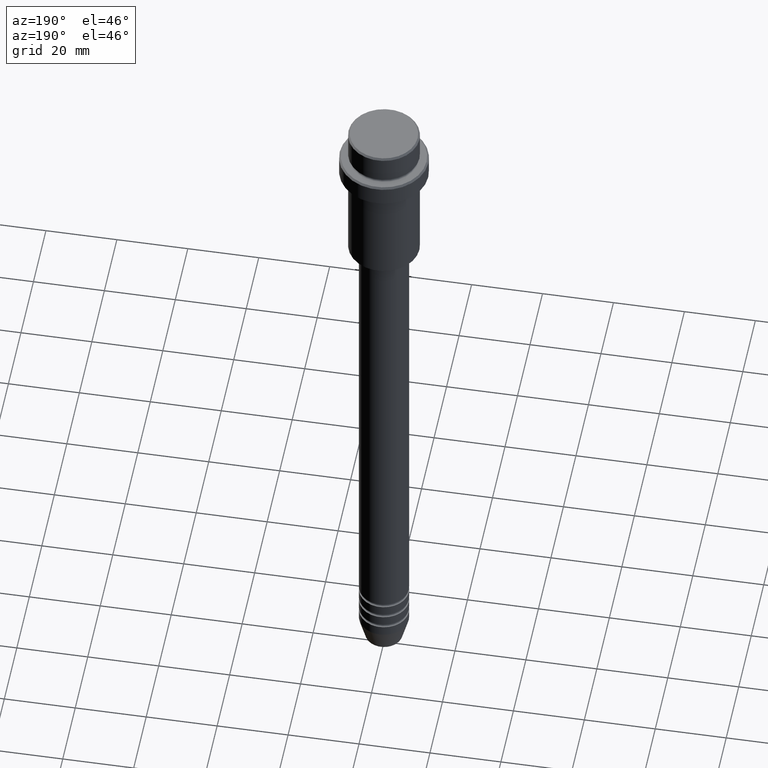
[diagram: clean part render]
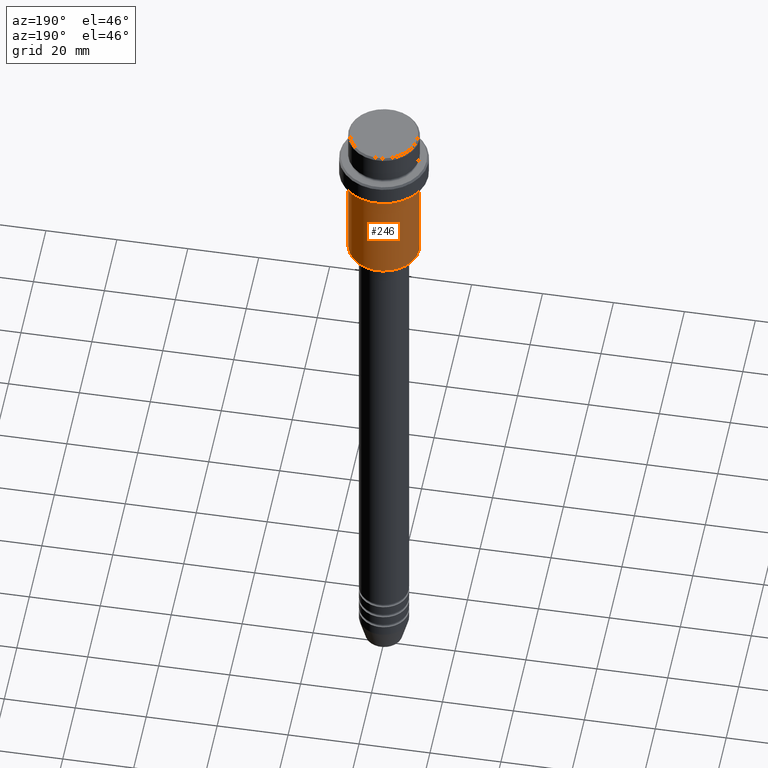
[diagram: same view with one face highlighted and labeled with its STEP entity id]
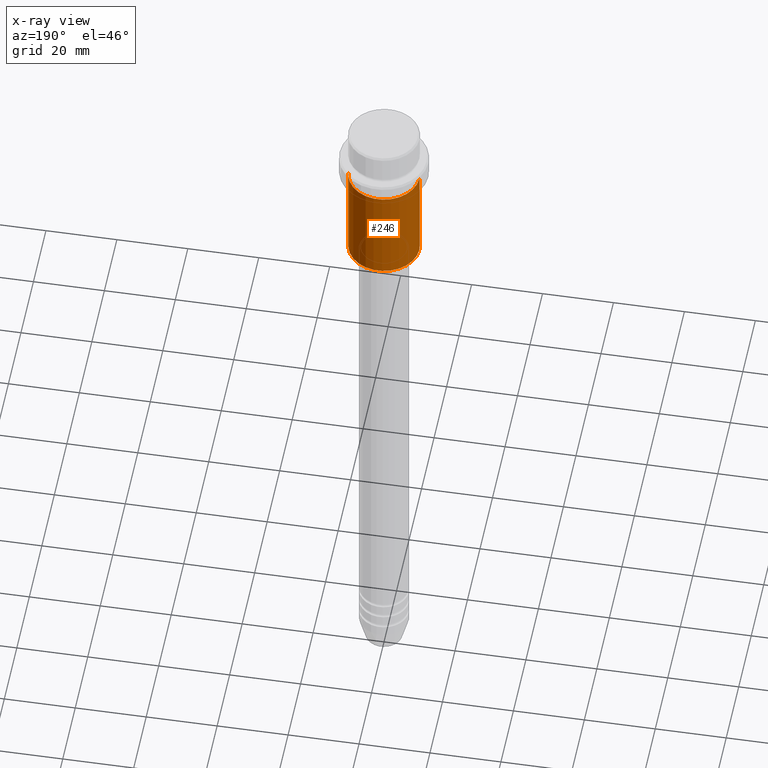
[diagram: x-ray of the same camera — body ghosted, the highlighted face saturated]
A machine part, auxiliary view. The second image highlights one B-rep face of the part: STEP entity #246.
The next image is the same camera in x-ray: the body ghosted, the highlighted face saturated — about 0% of this face is hidden behind the body in this view.
In plain terms, the highlighted cylindrical surface (edge-blend (fillet) strip) has radius 10 mm, axis along (-0, -0, 1).
Its self-contained STEP definition (entity closure, byte-faithful):
#25 = ORIENTED_EDGE ( 'NONE', *, *, #430, .T. ) ;
#48 = CARTESIAN_POINT ( 'NONE',  ( 0.000000000000000000, 0.000000000000000000, 0.000000000000000000 ) ) ;
#64 = EDGE_CURVE ( 'NONE', #1106, #327, #646, .T. ) ;
#93 = CARTESIAN_POINT ( 'NONE',  ( 0.000000000000000000, 0.000000000000000000, -44.50000000000001421 ) ) ;
#163 = DIRECTION ( 'NONE',  ( -0.000000000000000000, -0.000000000000000000, 1.000000000000000000 ) ) ;
#192 = DIRECTION ( 'NONE',  ( -0.000000000000000000, -0.000000000000000000, 1.000000000000000000 ) ) ;
#226 = VECTOR ( 'NONE', #192, 1000.000000000000000 ) ;
#246 = ADVANCED_FACE ( 'NONE', ( #499 ), #378, .T. ) ;
#259 = LINE ( 'NONE', #714, #556 ) ;
#327 = VERTEX_POINT ( 'NONE', #1280 ) ;
#378 = CYLINDRICAL_SURFACE ( 'NONE', #1033, 9.999999999999998224 ) ;
#406 = VERTEX_POINT ( 'NONE', #595 ) ;
#421 = DIRECTION ( 'NONE',  ( -0.000000000000000000, -0.000000000000000000, 1.000000000000000000 ) ) ;
#424 = DIRECTION ( 'NONE',  ( -1.000000000000000000, 0.000000000000000000, 0.000000000000000000 ) ) ;
#430 = EDGE_CURVE ( 'NONE', #327, #406, #716, .T. ) ;
#499 = FACE_OUTER_BOUND ( 'NONE', #735, .T. ) ;
#516 = EDGE_CURVE ( 'NONE', #703, #406, #1397, .T. ) ;
#556 = VECTOR ( 'NONE', #602, 1000.000000000000000 ) ;
#595 = CARTESIAN_POINT ( 'NONE',  ( -9.999999999999998224, 1.224646799147353059E-15, -16.00000000000000000 ) ) ;
#602 = DIRECTION ( 'NONE',  ( -0.000000000000000000, -0.000000000000000000, 1.000000000000000000 ) ) ;
#628 = CARTESIAN_POINT ( 'NONE',  ( 0.000000000000000000, 0.000000000000000000, -16.00000000000000000 ) ) ;
#646 = CIRCLE ( 'NONE', #1218, 9.999999999999998224 ) ;
#683 = ORIENTED_EDGE ( 'NONE', *, *, #64, .T. ) ;
#703 = VERTEX_POINT ( 'NONE', #1060 ) ;
#714 = CARTESIAN_POINT ( 'NONE',  ( 9.999999999999998224, 0.000000000000000000, 0.000000000000000000 ) ) ;
#716 = LINE ( 'NONE', #1394, #226 ) ;
#735 = EDGE_LOOP ( 'NONE', ( #683, #25, #1303, #980 ) ) ;
#788 = AXIS2_PLACEMENT_3D ( 'NONE', #628, #421, #866 ) ;
#847 = EDGE_CURVE ( 'NONE', #1106, #703, #259, .T. ) ;
#866 = DIRECTION ( 'NONE',  ( 1.000000000000000000, 0.000000000000000000, 0.000000000000000000 ) ) ;
#980 = ORIENTED_EDGE ( 'NONE', *, *, #847, .F. ) ;
#1033 = AXIS2_PLACEMENT_3D ( 'NONE', #48, #163, #1054 ) ;
#1054 = DIRECTION ( 'NONE',  ( 1.000000000000000000, 0.000000000000000000, 0.000000000000000000 ) ) ;
#1060 = CARTESIAN_POINT ( 'NONE',  ( 9.999999999999998224, 0.000000000000000000, -16.00000000000000000 ) ) ;
#1106 = VERTEX_POINT ( 'NONE', #1412 ) ;
#1218 = AXIS2_PLACEMENT_3D ( 'NONE', #93, #1408, #424 ) ;
#1280 = CARTESIAN_POINT ( 'NONE',  ( -9.999999999999998224, 1.224646799147353059E-15, -44.50000000000001421 ) ) ;
#1303 = ORIENTED_EDGE ( 'NONE', *, *, #516, .F. ) ;
#1394 = CARTESIAN_POINT ( 'NONE',  ( -9.999999999999998224, 1.224646799147353059E-15, 0.000000000000000000 ) ) ;
#1397 = CIRCLE ( 'NONE', #788, 9.999999999999998224 ) ;
#1408 = DIRECTION ( 'NONE',  ( -0.000000000000000000, -0.000000000000000000, 1.000000000000000000 ) ) ;
#1412 = CARTESIAN_POINT ( 'NONE',  ( 9.999999999999998224, 0.000000000000000000, -44.50000000000001421 ) ) ;